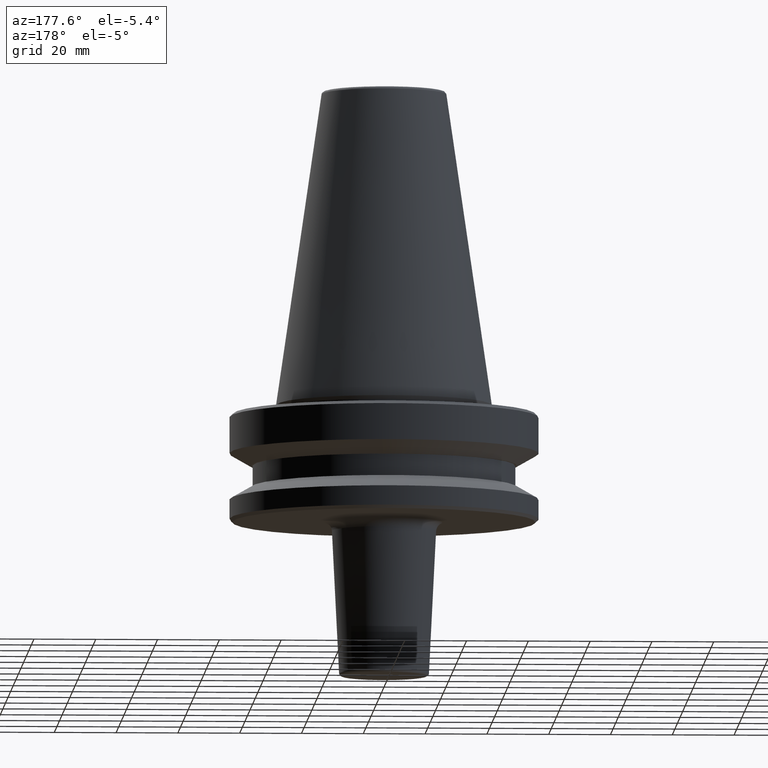
[diagram: clean part render]
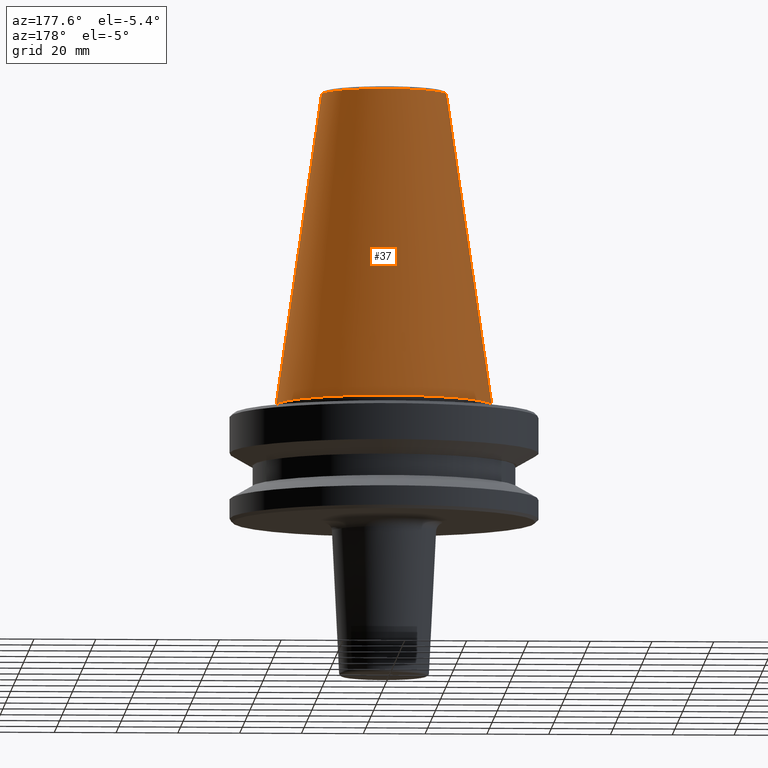
[diagram: same view with one face highlighted and labeled with its STEP entity id]
A machine part, auxiliary view. The second image highlights one B-rep face of the part: STEP entity #37.
In plain terms, the highlighted conical surface has half-angle 8.297 deg.
Its self-contained STEP definition (entity closure, byte-faithful):
#4 = AXIS2_PLACEMENT_3D ( 'NONE', #288, #828, #369 ) ;
#16 = ORIENTED_EDGE ( 'NONE', *, *, #367, .F. ) ;
#25 = VERTEX_POINT ( 'NONE', #165 ) ;
#37 = ADVANCED_FACE ( 'NONE', ( #898 ), #626, .T. ) ;
#86 = VERTEX_POINT ( 'NONE', #907 ) ;
#88 = CIRCLE ( 'NONE', #273, 20.20381605152244500 ) ;
#136 = LINE ( 'NONE', #298, #786 ) ;
#139 = VERTEX_POINT ( 'NONE', #1002 ) ;
#165 = CARTESIAN_POINT ( 'NONE',  ( 34.92499999999999700, 0.0000000000000000000, 0.0000000000000000000 ) ) ;
#171 = DIRECTION ( 'NONE',  ( -0.0000000000000000000, -0.0000000000000000000, 1.000000000000000000 ) ) ;
#239 = DIRECTION ( 'NONE',  ( 0.1443082272673000800, 1.767266086135278300E-017, -0.9895327864921754600 ) ) ;
#273 = AXIS2_PLACEMENT_3D ( 'NONE', #638, #171, #708 ) ;
#288 = CARTESIAN_POINT ( 'NONE',  ( 0.0000000000000000000, 0.0000000000000000000, 0.0000000000000000000 ) ) ;
#298 = CARTESIAN_POINT ( 'NONE',  ( -34.92499999999999700, 0.0000000000000000000, 0.0000000000000000000 ) ) ;
#352 = ORIENTED_EDGE ( 'NONE', *, *, #373, .T. ) ;
#367 = EDGE_CURVE ( 'NONE', #86, #139, #88, .T. ) ;
#369 = DIRECTION ( 'NONE',  ( 1.000000000000000000, 0.0000000000000000000, 0.0000000000000000000 ) ) ;
#373 = EDGE_CURVE ( 'NONE', #86, #25, #837, .T. ) ;
#448 = CARTESIAN_POINT ( 'NONE',  ( -34.92499999999999700, 4.277078946022131700E-015, 0.0000000000000000000 ) ) ;
#533 = VECTOR ( 'NONE', #239, 1000.000000000000000 ) ;
#535 = ORIENTED_EDGE ( 'NONE', *, *, #593, .F. ) ;
#587 = DIRECTION ( 'NONE',  ( -0.1443082272673000800, 0.0000000000000000000, -0.9895327864921754600 ) ) ;
#593 = EDGE_CURVE ( 'NONE', #139, #674, #136, .T. ) ;
#602 = CARTESIAN_POINT ( 'NONE',  ( 0.0000000000000000000, 0.0000000000000000000, 0.0000000000000000000 ) ) ;
#626 = CONICAL_SURFACE ( 'NONE', #630, 34.92499999999999700, 0.1448138465474120600 ) ;
#630 = AXIS2_PLACEMENT_3D ( 'NONE', #602, #683, #755 ) ;
#638 = CARTESIAN_POINT ( 'NONE',  ( 0.0000000000000000000, 0.0000000000000000000, 100.9443082272672900 ) ) ;
#674 = VERTEX_POINT ( 'NONE', #448 ) ;
#683 = DIRECTION ( 'NONE',  ( 0.0000000000000000000, 0.0000000000000000000, -1.000000000000000000 ) ) ;
#689 = EDGE_CURVE ( 'NONE', #25, #674, #911, .T. ) ;
#708 = DIRECTION ( 'NONE',  ( 1.000000000000000000, 0.0000000000000000000, 0.0000000000000000000 ) ) ;
#726 = EDGE_LOOP ( 'NONE', ( #16, #352, #791, #535 ) ) ;
#755 = DIRECTION ( 'NONE',  ( -1.000000000000000000, 0.0000000000000000000, 0.0000000000000000000 ) ) ;
#779 = CARTESIAN_POINT ( 'NONE',  ( 34.92499999999999700, 4.277078946022130900E-015, 0.0000000000000000000 ) ) ;
#786 = VECTOR ( 'NONE', #587, 1000.000000000000000 ) ;
#791 = ORIENTED_EDGE ( 'NONE', *, *, #689, .T. ) ;
#828 = DIRECTION ( 'NONE',  ( -0.0000000000000000000, -0.0000000000000000000, 1.000000000000000000 ) ) ;
#837 = LINE ( 'NONE', #779, #533 ) ;
#898 = FACE_OUTER_BOUND ( 'NONE', #726, .T. ) ;
#907 = CARTESIAN_POINT ( 'NONE',  ( 20.20381605152244500, 3.375666405914009100E-015, 100.9443082272672900 ) ) ;
#911 = CIRCLE ( 'NONE', #4, 34.92499999999999700 ) ;
#1002 = CARTESIAN_POINT ( 'NONE',  ( -20.20381605152244500, 0.0000000000000000000, 100.9443082272672900 ) ) ;